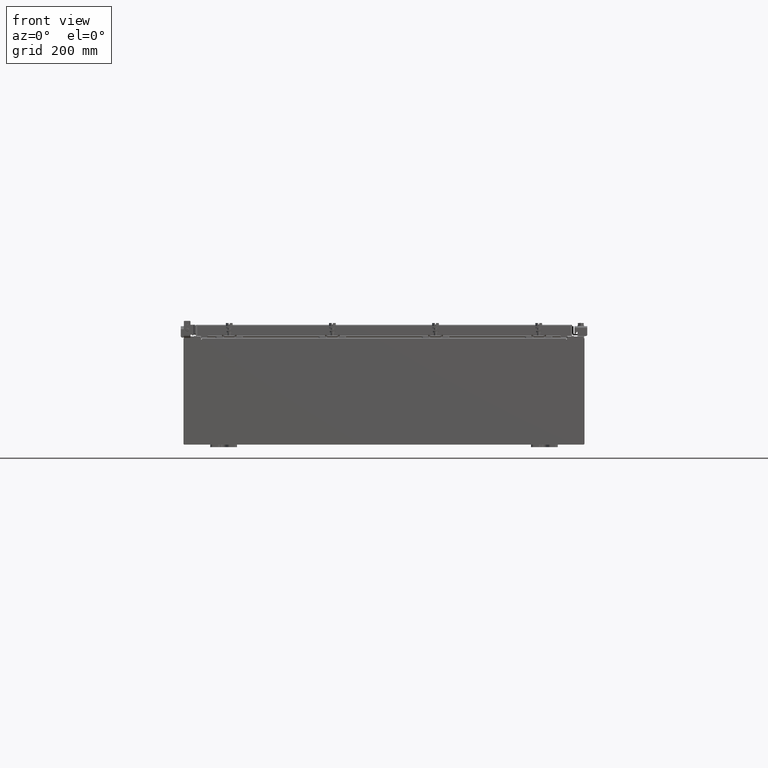
[diagram: clean part render]
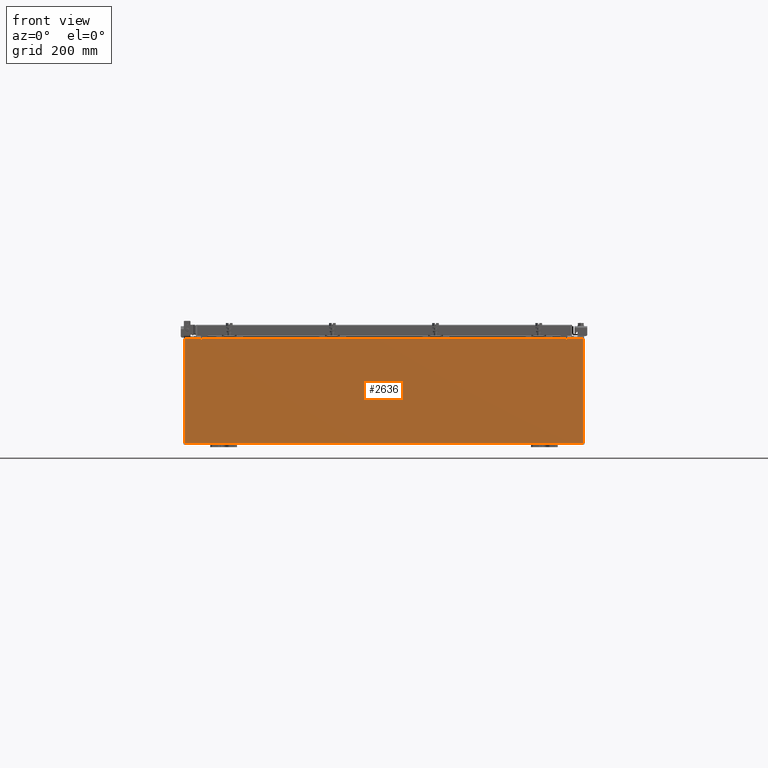
[diagram: same view with one face highlighted and labeled with its STEP entity id]
A machine part, front view. The second image highlights one B-rep face of the part: STEP entity #2636.
In plain terms, the highlighted planar face has unit normal (-0, 1, -0).
Its self-contained STEP definition (entity closure, byte-faithful):
#124 = CARTESIAN_POINT ( 'NONE',  ( 13.67455000000000200, 0.0000000000000000000, 3.874949999999999700 ) ) ;
#145 = CARTESIAN_POINT ( 'NONE',  ( 14.92530000000000200, 0.0000000000000000000, -3.925299999999999600 ) ) ;
#210 = DIRECTION ( 'NONE',  ( 1.000000000000000000, 0.0000000000000000000, 0.0000000000000000000 ) ) ;
#633 = EDGE_CURVE ( 'NONE', #2235, #1047, #15008, .T. ) ;
#747 = LINE ( 'NONE', #23004, #15271 ) ;
#1047 = VERTEX_POINT ( 'NONE', #18679 ) ;
#1369 = LINE ( 'NONE', #21765, #5795 ) ;
#1441 = EDGE_CURVE ( 'NONE', #23784, #22766, #1369, .T. ) ;
#1565 = EDGE_CURVE ( 'NONE', #23364, #7262, #3414, .T. ) ;
#2235 = VERTEX_POINT ( 'NONE', #5789 ) ;
#2636 = ADVANCED_FACE ( 'NONE', ( #23542 ), #16813, .F. ) ;
#2677 = EDGE_CURVE ( 'NONE', #19165, #23364, #2768, .T. ) ;
#2768 = LINE ( 'NONE', #16881, #17306 ) ;
#3080 = DIRECTION ( 'NONE',  ( 0.0000000000000000000, 0.0000000000000000000, -1.000000000000000000 ) ) ;
#3401 = ORIENTED_EDGE ( 'NONE', *, *, #633, .T. ) ;
#3414 = LINE ( 'NONE', #10198, #8432 ) ;
#3497 = LINE ( 'NONE', #22150, #17441 ) ;
#3882 = ORIENTED_EDGE ( 'NONE', *, *, #12473, .F. ) ;
#4110 = VERTEX_POINT ( 'NONE', #124 ) ;
#5459 = CARTESIAN_POINT ( 'NONE',  ( 0.0000000000000000000, 0.0000000000000000000, 0.0000000000000000000 ) ) ;
#5789 = CARTESIAN_POINT ( 'NONE',  ( 13.67455000000000400, 0.0000000000000000000, 3.925299999999999600 ) ) ;
#5795 = VECTOR ( 'NONE', #6317, 39.37007874015748100 ) ;
#5894 = EDGE_CURVE ( 'NONE', #7262, #11156, #20211, .T. ) ;
#5939 = CIRCLE ( 'NONE', #21360, 0.01867499999999949400 ) ;
#6091 = ORIENTED_EDGE ( 'NONE', *, *, #22382, .F. ) ;
#6317 = DIRECTION ( 'NONE',  ( 1.000000000000000000, 0.0000000000000000000, 0.0000000000000000000 ) ) ;
#6432 = CARTESIAN_POINT ( 'NONE',  ( -13.67454999999999500, 0.0000000000000000000, 3.925299999999999600 ) ) ;
#6485 = AXIS2_PLACEMENT_3D ( 'NONE', #5459, #7339, #20668 ) ;
#7038 = CARTESIAN_POINT ( 'NONE',  ( 13.63720000000000400, 0.0000000000000000000, 3.874949999999999700 ) ) ;
#7110 = ORIENTED_EDGE ( 'NONE', *, *, #9048, .F. ) ;
#7262 = VERTEX_POINT ( 'NONE', #15277 ) ;
#7336 = DIRECTION ( 'NONE',  ( -0.0000000000000000000, 1.000000000000000000, -0.0000000000000000000 ) ) ;
#7339 = DIRECTION ( 'NONE',  ( 0.0000000000000000000, -1.000000000000000000, 0.0000000000000000000 ) ) ;
#7708 = CARTESIAN_POINT ( 'NONE',  ( -13.63719999999999600, -0.0000000000000000000, 3.874949999999999700 ) ) ;
#7896 = ORIENTED_EDGE ( 'NONE', *, *, #1441, .T. ) ;
#8096 = ORIENTED_EDGE ( 'NONE', *, *, #5894, .T. ) ;
#8249 = ORIENTED_EDGE ( 'NONE', *, *, #14038, .F. ) ;
#8325 = ORIENTED_EDGE ( 'NONE', *, *, #17137, .F. ) ;
#8343 = VECTOR ( 'NONE', #3080, 39.37007874015748100 ) ;
#8432 = VECTOR ( 'NONE', #11697, 39.37007874015748100 ) ;
#8784 = DIRECTION ( 'NONE',  ( -0.0000000000000000000, 1.000000000000000000, -0.0000000000000000000 ) ) ;
#8849 = DIRECTION ( 'NONE',  ( 0.0000000000000000000, 0.0000000000000000000, -1.000000000000000000 ) ) ;
#9048 = EDGE_CURVE ( 'NONE', #22876, #22766, #747, .T. ) ;
#9320 = CARTESIAN_POINT ( 'NONE',  ( -13.67454999999999500, -0.0000000000000000000, 0.0000000000000000000 ) ) ;
#9713 = DIRECTION ( 'NONE',  ( 0.0000000000000000000, 0.0000000000000000000, 1.000000000000000000 ) ) ;
#9957 = VECTOR ( 'NONE', #210, 39.37007874015748100 ) ;
#10198 = CARTESIAN_POINT ( 'NONE',  ( -14.92529999999999800, 0.0000000000000000000, 3.925299999999999600 ) ) ;
#10339 = VECTOR ( 'NONE', #14311, 39.37007874015748100 ) ;
#10581 = DIRECTION ( 'NONE',  ( -1.000000000000000000, -0.0000000000000000000, -0.0000000000000000000 ) ) ;
#11156 = VERTEX_POINT ( 'NONE', #6432 ) ;
#11249 = EDGE_LOOP ( 'NONE', ( #6091, #8249, #18536, #7896, #7110, #3882, #8325, #3401, #14224, #20207, #24014, #8096 ) ) ;
#11697 = DIRECTION ( 'NONE',  ( -0.0000000000000000000, -0.0000000000000000000, 1.000000000000000000 ) ) ;
#12473 = EDGE_CURVE ( 'NONE', #4110, #22876, #23829, .T. ) ;
#12481 = CARTESIAN_POINT ( 'NONE',  ( 14.92530000000000200, 0.0000000000000000000, 3.925299999999999600 ) ) ;
#12826 = EDGE_CURVE ( 'NONE', #1047, #19165, #17854, .T. ) ;
#14038 = EDGE_CURVE ( 'NONE', #14931, #19011, #5939, .T. ) ;
#14224 = ORIENTED_EDGE ( 'NONE', *, *, #12826, .T. ) ;
#14311 = DIRECTION ( 'NONE',  ( -4.340572780400004900E-014, 0.0000000000000000000, -1.000000000000000000 ) ) ;
#14719 = CARTESIAN_POINT ( 'NONE',  ( -14.92529999999999800, 0.0000000000000000000, -3.925299999999999600 ) ) ;
#14931 = VERTEX_POINT ( 'NONE', #7708 ) ;
#15008 = LINE ( 'NONE', #22960, #9957 ) ;
#15130 = VECTOR ( 'NONE', #16777, 39.37007874015748100 ) ;
#15271 = VECTOR ( 'NONE', #9713, 39.37007874015748100 ) ;
#15277 = CARTESIAN_POINT ( 'NONE',  ( -14.92529999999999800, 0.0000000000000000000, 3.925299999999999600 ) ) ;
#15978 = LINE ( 'NONE', #21893, #10339 ) ;
#16062 = CARTESIAN_POINT ( 'NONE',  ( 13.63720000000000400, 0.0000000000000000000, 3.912299999999999700 ) ) ;
#16777 = DIRECTION ( 'NONE',  ( 1.000000000000000000, 0.0000000000000000000, 0.0000000000000000000 ) ) ;
#16813 = PLANE ( 'NONE',  #6485 ) ;
#16881 = CARTESIAN_POINT ( 'NONE',  ( -14.92529999999999800, 0.0000000000000000000, -3.925299999999999600 ) ) ;
#17137 = EDGE_CURVE ( 'NONE', #2235, #4110, #15978, .T. ) ;
#17306 = VECTOR ( 'NONE', #10581, 39.37007874015748100 ) ;
#17441 = VECTOR ( 'NONE', #8849, 39.37007874015748100 ) ;
#17513 = VECTOR ( 'NONE', #23062, 39.37007874015748100 ) ;
#17854 = LINE ( 'NONE', #12481, #8343 ) ;
#18536 = ORIENTED_EDGE ( 'NONE', *, *, #22847, .F. ) ;
#18679 = CARTESIAN_POINT ( 'NONE',  ( 14.92530000000000200, 0.0000000000000000000, 3.925299999999999600 ) ) ;
#18707 = CARTESIAN_POINT ( 'NONE',  ( -13.65587499999999600, 0.0000000000000000000, 3.874949999999999700 ) ) ;
#19011 = VERTEX_POINT ( 'NONE', #20573 ) ;
#19165 = VERTEX_POINT ( 'NONE', #145 ) ;
#20163 = CARTESIAN_POINT ( 'NONE',  ( 13.65587500000000200, 0.0000000000000000000, 3.874949999999999700 ) ) ;
#20207 = ORIENTED_EDGE ( 'NONE', *, *, #2677, .T. ) ;
#20211 = LINE ( 'NONE', #24336, #15130 ) ;
#20393 = AXIS2_PLACEMENT_3D ( 'NONE', #20163, #8784, #22072 ) ;
#20573 = CARTESIAN_POINT ( 'NONE',  ( -13.67454999999999500, 0.0000000000000000000, 3.874949999999999700 ) ) ;
#20663 = DIRECTION ( 'NONE',  ( 0.0000000000000000000, 0.0000000000000000000, -1.000000000000000000 ) ) ;
#20668 = DIRECTION ( 'NONE',  ( 0.0000000000000000000, -0.0000000000000000000, -1.000000000000000000 ) ) ;
#21360 = AXIS2_PLACEMENT_3D ( 'NONE', #18707, #7336, #20663 ) ;
#21376 = CARTESIAN_POINT ( 'NONE',  ( -13.63719999999999600, 1.024442997624098700E-016, 3.912299999999999700 ) ) ;
#21765 = CARTESIAN_POINT ( 'NONE',  ( -13.63719999999999800, 1.024442997624098700E-016, 3.912299999999999700 ) ) ;
#21893 = CARTESIAN_POINT ( 'NONE',  ( 13.67454999999983300, -0.0000000000000000000, -5.935537951421816200E-013 ) ) ;
#22072 = DIRECTION ( 'NONE',  ( 0.0000000000000000000, 0.0000000000000000000, -1.000000000000000000 ) ) ;
#22150 = CARTESIAN_POINT ( 'NONE',  ( -13.63719999999999600, -0.0000000000000000000, 0.0000000000000000000 ) ) ;
#22382 = EDGE_CURVE ( 'NONE', #19011, #11156, #22592, .T. ) ;
#22592 = LINE ( 'NONE', #9320, #17513 ) ;
#22766 = VERTEX_POINT ( 'NONE', #16062 ) ;
#22847 = EDGE_CURVE ( 'NONE', #23784, #14931, #3497, .T. ) ;
#22876 = VERTEX_POINT ( 'NONE', #7038 ) ;
#22960 = CARTESIAN_POINT ( 'NONE',  ( -14.92529999999999800, 0.0000000000000000000, 3.925299999999999600 ) ) ;
#23004 = CARTESIAN_POINT ( 'NONE',  ( 13.63720000000000400, 0.0000000000000000000, 0.0000000000000000000 ) ) ;
#23062 = DIRECTION ( 'NONE',  ( 0.0000000000000000000, 0.0000000000000000000, 1.000000000000000000 ) ) ;
#23364 = VERTEX_POINT ( 'NONE', #14719 ) ;
#23542 = FACE_OUTER_BOUND ( 'NONE', #11249, .T. ) ;
#23784 = VERTEX_POINT ( 'NONE', #21376 ) ;
#23829 = CIRCLE ( 'NONE', #20393, 0.01867499999999949400 ) ;
#24014 = ORIENTED_EDGE ( 'NONE', *, *, #1565, .T. ) ;
#24336 = CARTESIAN_POINT ( 'NONE',  ( -14.92529999999999800, 0.0000000000000000000, 3.925299999999999600 ) ) ;